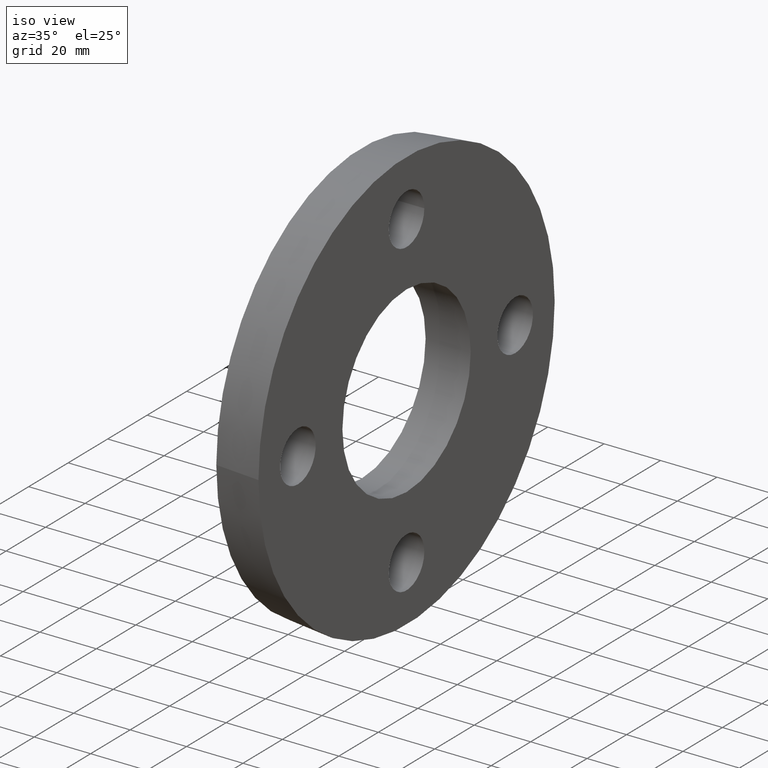
[diagram: clean part render]
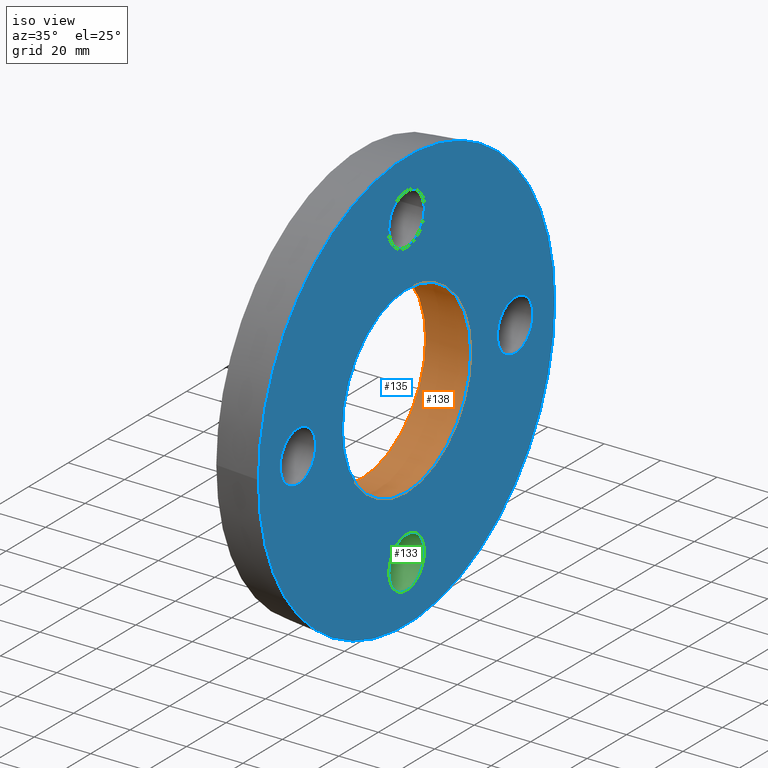
[diagram: same view with three faces highlighted in distinct colors, each labeled with its STEP entity id]
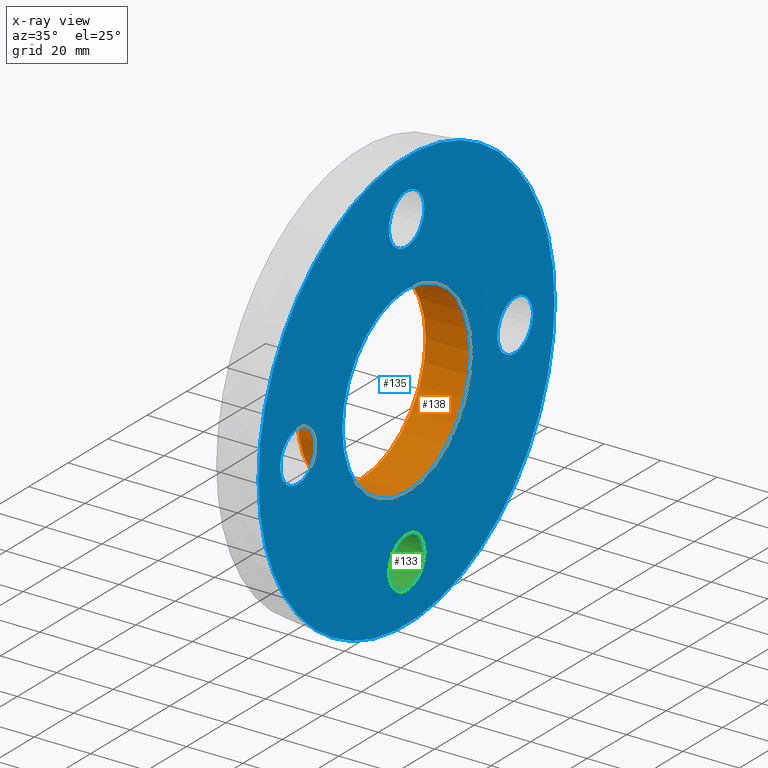
[diagram: x-ray of the same camera — body ghosted, the three highlighted faces saturated]
A machine part, iso view with three faces highlighted in distinct colors.
The next image is the same camera in x-ray (body ghosted, the three faces saturated) — at least one of them is partly hidden behind the body in this view.
Their STEP definitions:

[orange] entity #138 — the highlighted cylindrical surface (bore or boss wall) has radius 32.5 mm, axis along (-1, 0, 0).
#33=FACE_BOUND('',#65,.T.);
#41=FACE_OUTER_BOUND('',#64,.T.);
#64=EDGE_LOOP('',(#124));
#65=EDGE_LOOP('',(#125));
#75=CIRCLE('',#155,32.5);
#77=CIRCLE('',#159,32.5);
#87=VERTEX_POINT('',#227);
#89=VERTEX_POINT('',#233);
#99=EDGE_CURVE('',#87,#87,#75,.T.);
#101=EDGE_CURVE('',#89,#89,#77,.T.);
#124=ORIENTED_EDGE('',*,*,#99,.F.);
#125=ORIENTED_EDGE('',*,*,#101,.T.);
#130=CYLINDRICAL_SURFACE('',#160,32.5);
#138=ADVANCED_FACE('',(#41,#33),#130,.F.);
#155=AXIS2_PLACEMENT_3D('',#228,#191,#192);
#159=AXIS2_PLACEMENT_3D('',#234,#199,#200);
#160=AXIS2_PLACEMENT_3D('',#235,#201,#202);
#191=DIRECTION('center_axis',(-1.,0.,0.));
#192=DIRECTION('ref_axis',(0.,0.,1.));
#199=DIRECTION('center_axis',(-1.,0.,0.));
#200=DIRECTION('ref_axis',(0.,0.,1.));
#201=DIRECTION('center_axis',(-1.,0.,0.));
#202=DIRECTION('ref_axis',(0.,-1.,0.));
#227=CARTESIAN_POINT('',(8.,-32.5,0.));
#228=CARTESIAN_POINT('Origin',(8.,0.,0.));
#233=CARTESIAN_POINT('',(-8.,-32.5,0.));
#234=CARTESIAN_POINT('Origin',(-8.,0.,0.));
#235=CARTESIAN_POINT('Origin',(0.,0.,0.));

[blue] entity #135 — the highlighted planar face has unit normal (1, 0, 0).
#16=PLANE('',#153);
#22=FACE_BOUND('',#51,.T.);
#23=FACE_BOUND('',#52,.T.);
#24=FACE_BOUND('',#53,.T.);
#25=FACE_BOUND('',#54,.T.);
#26=FACE_BOUND('',#55,.T.);
#38=FACE_OUTER_BOUND('',#50,.T.);
#50=EDGE_LOOP('',(#110));
#51=EDGE_LOOP('',(#111));
#52=EDGE_LOOP('',(#112));
#53=EDGE_LOOP('',(#113));
#54=EDGE_LOOP('',(#114));
#55=EDGE_LOOP('',(#115));
#67=CIRCLE('',#143,9.);
#69=CIRCLE('',#146,9.);
#71=CIRCLE('',#149,9.);
#73=CIRCLE('',#152,9.);
#74=CIRCLE('',#154,75.);
#75=CIRCLE('',#155,32.5);
#79=VERTEX_POINT('',#207);
#81=VERTEX_POINT('',#212);
#83=VERTEX_POINT('',#217);
#85=VERTEX_POINT('',#222);
#86=VERTEX_POINT('',#225);
#87=VERTEX_POINT('',#227);
#91=EDGE_CURVE('',#79,#79,#67,.T.);
#93=EDGE_CURVE('',#81,#81,#69,.T.);
#95=EDGE_CURVE('',#83,#83,#71,.T.);
#97=EDGE_CURVE('',#85,#85,#73,.T.);
#98=EDGE_CURVE('',#86,#86,#74,.T.);
#99=EDGE_CURVE('',#87,#87,#75,.T.);
#110=ORIENTED_EDGE('',*,*,#98,.F.);
#111=ORIENTED_EDGE('',*,*,#91,.T.);
#112=ORIENTED_EDGE('',*,*,#93,.T.);
#113=ORIENTED_EDGE('',*,*,#95,.T.);
#114=ORIENTED_EDGE('',*,*,#97,.T.);
#115=ORIENTED_EDGE('',*,*,#99,.T.);
#135=ADVANCED_FACE('',(#38,#22,#23,#24,#25,#26),#16,.T.);
#143=AXIS2_PLACEMENT_3D('',#208,#167,#168);
#146=AXIS2_PLACEMENT_3D('',#213,#173,#174);
#149=AXIS2_PLACEMENT_3D('',#218,#179,#180);
#152=AXIS2_PLACEMENT_3D('',#223,#185,#186);
#153=AXIS2_PLACEMENT_3D('',#224,#187,#188);
#154=AXIS2_PLACEMENT_3D('',#226,#189,#190);
#155=AXIS2_PLACEMENT_3D('',#228,#191,#192);
#167=DIRECTION('center_axis',(-1.,0.,0.));
#168=DIRECTION('ref_axis',(0.,-1.,-1.83697019872103E-16));
#173=DIRECTION('center_axis',(-1.,0.,0.));
#174=DIRECTION('ref_axis',(0.,1.22464679914735E-16,-1.));
#179=DIRECTION('center_axis',(-1.,0.,0.));
#180=DIRECTION('ref_axis',(0.,1.,6.12323399573677E-17));
#185=DIRECTION('center_axis',(-1.,0.,0.));
#186=DIRECTION('ref_axis',(0.,0.,1.));
#187=DIRECTION('center_axis',(1.,0.,0.));
#188=DIRECTION('ref_axis',(0.,0.,-1.));
#189=DIRECTION('center_axis',(-1.,0.,0.));
#190=DIRECTION('ref_axis',(0.,0.,1.));
#191=DIRECTION('center_axis',(-1.,0.,0.));
#192=DIRECTION('ref_axis',(0.,0.,1.));
#207=CARTESIAN_POINT('',(8.,8.99999999999999,55.));
#208=CARTESIAN_POINT('Origin',(8.,-1.01033360929657E-14,55.));
#212=CARTESIAN_POINT('',(8.,-55.,8.99999999999999));
#213=CARTESIAN_POINT('Origin',(8.,-55.,-6.73555739531044E-15));
#217=CARTESIAN_POINT('',(8.,-9.,-55.));
#218=CARTESIAN_POINT('Origin',(8.,3.36777869765522E-15,-55.));
#222=CARTESIAN_POINT('',(8.,55.,-9.));
#223=CARTESIAN_POINT('Origin',(8.,55.,0.));
#224=CARTESIAN_POINT('Origin',(8.,-75.,0.));
#225=CARTESIAN_POINT('',(8.,-75.,0.));
#226=CARTESIAN_POINT('Origin',(8.,0.,0.));
#227=CARTESIAN_POINT('',(8.,-32.5,0.));
#228=CARTESIAN_POINT('Origin',(8.,0.,0.));

[green] entity #133 — the highlighted cylindrical surface (bore or boss wall) has radius 9 mm, axis along (-1, 0, 0).
#20=FACE_BOUND('',#47,.T.);
#36=FACE_OUTER_BOUND('',#46,.T.);
#46=EDGE_LOOP('',(#106));
#47=EDGE_LOOP('',(#107));
#70=CIRCLE('',#148,9.);
#71=CIRCLE('',#149,9.);
#82=VERTEX_POINT('',#215);
#83=VERTEX_POINT('',#217);
#94=EDGE_CURVE('',#82,#82,#70,.T.);
#95=EDGE_CURVE('',#83,#83,#71,.T.);
#106=ORIENTED_EDGE('',*,*,#94,.F.);
#107=ORIENTED_EDGE('',*,*,#95,.F.);
#128=CYLINDRICAL_SURFACE('',#147,9.);
#133=ADVANCED_FACE('',(#36,#20),#128,.F.);
#147=AXIS2_PLACEMENT_3D('',#214,#175,#176);
#148=AXIS2_PLACEMENT_3D('',#216,#177,#178);
#149=AXIS2_PLACEMENT_3D('',#218,#179,#180);
#175=DIRECTION('center_axis',(-1.,0.,0.));
#176=DIRECTION('ref_axis',(0.,1.,6.12323399573677E-17));
#177=DIRECTION('center_axis',(1.,0.,0.));
#178=DIRECTION('ref_axis',(0.,1.,6.12323399573677E-17));
#179=DIRECTION('center_axis',(-1.,0.,0.));
#180=DIRECTION('ref_axis',(0.,1.,6.12323399573677E-17));
#214=CARTESIAN_POINT('Origin',(8.,3.36777869765522E-15,-55.));
#215=CARTESIAN_POINT('',(-8.,-9.,-55.));
#216=CARTESIAN_POINT('Origin',(-8.,3.36777869765522E-15,-55.));
#217=CARTESIAN_POINT('',(8.,-9.,-55.));
#218=CARTESIAN_POINT('Origin',(8.,3.36777869765522E-15,-55.));